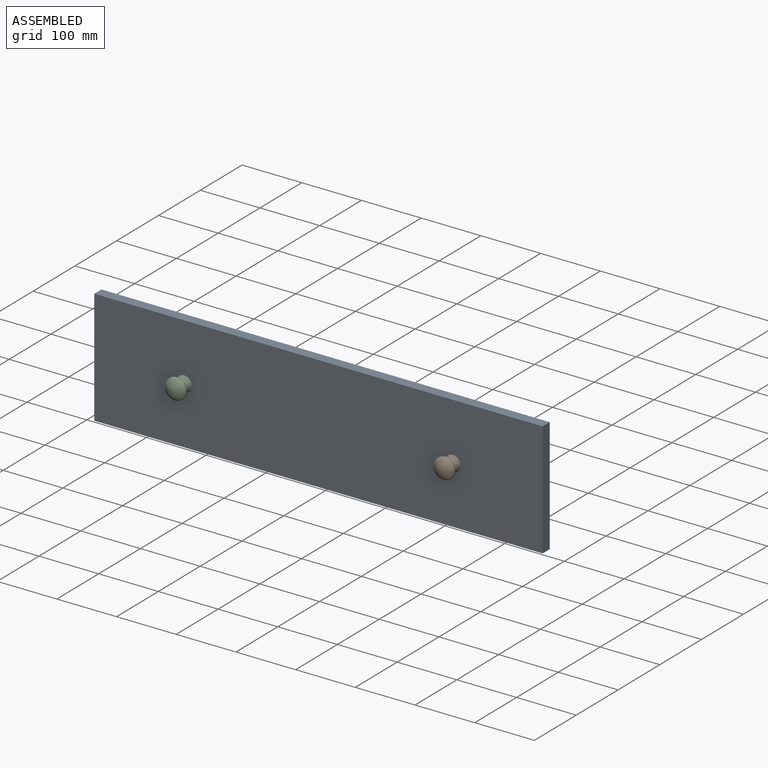
[diagram: assembled view]
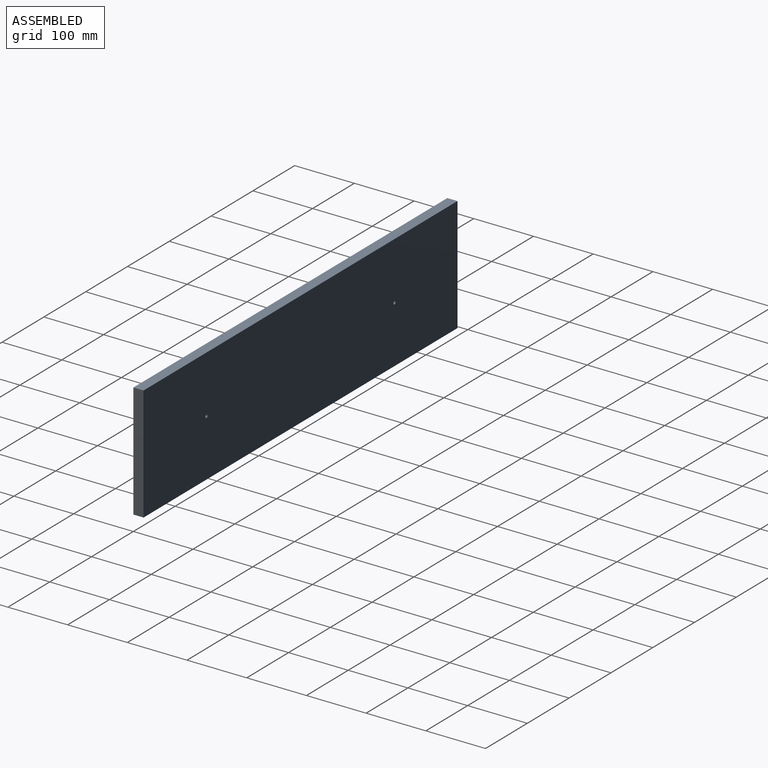
[diagram: assembled view, second angle]
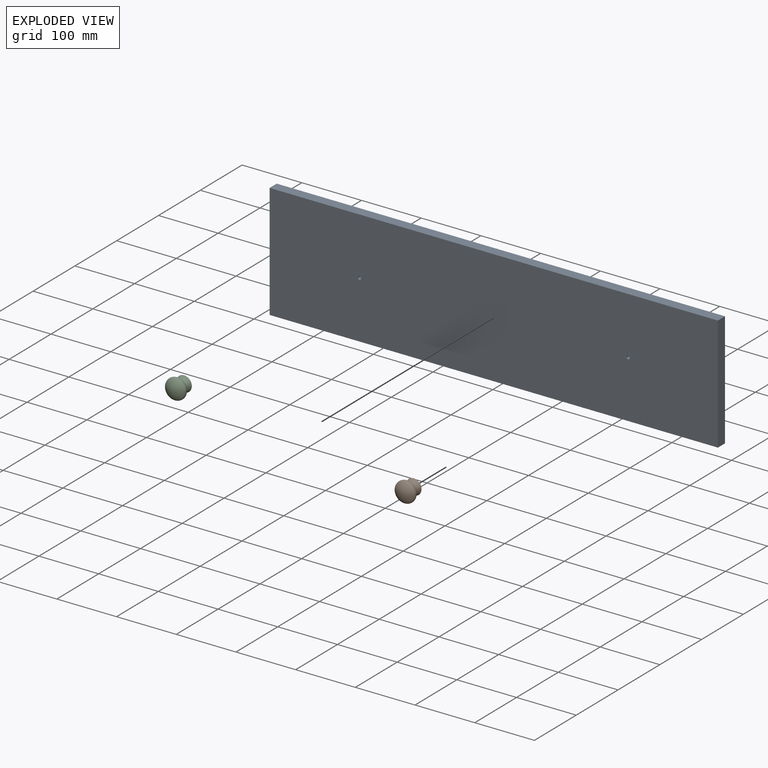
[diagram: exploded view]
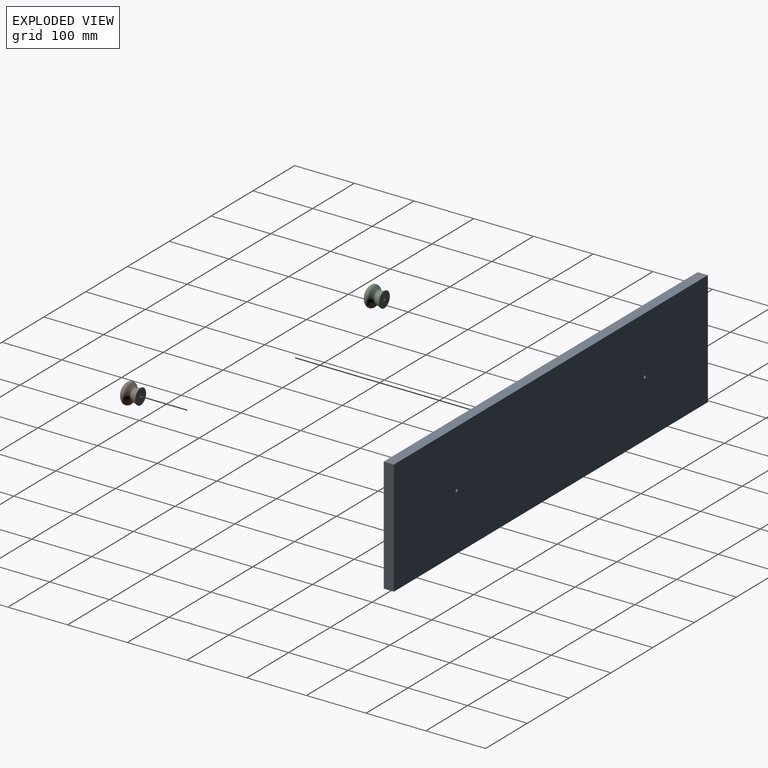
[diagram: exploded view, second angle]
ASSEMBLY  parts=3 mates=2
PART A: 8 faces, bbox 751x17x192.3 mm
  f0: plane 192.33x17mm, normal (-1,0,0), area 3269.7mm2, adj f1,f3,f4,f5
  f1: plane 751x17mm, normal (0,0,-1), area 12767mm2, adj f0,f2,f4,f5
  f2: plane 192.33x17mm, normal (1,0,0), area 3269.7mm2, adj f1,f3,f4,f5
  f3: plane 751x17mm, normal (0,0,1), area 12767mm2, adj f0,f2,f4,f5
  f4: plane 751x192.33mm, normal (0,1,0), area 144394.8mm2, adj f0,f1,f2,f3,f6,f7
  f5: plane 751x192.33mm, normal (0,-1,0), area 144394.8mm2, adj f0,f1,f2,f3,f6,f7
  f6: cylinder r=2.75mm len=17mm, axis (0,1,0), area 293.7mm2, adj f4,f5
  f7: cylinder r=2.75mm len=17mm, axis (0,1,0), area 293.7mm2, adj f4,f5
PART B: 8 faces, bbox 37.3x29.5x37.3 mm
  f0: sphere r=22.95mm, area 868.8mm2, adj f1
  f1: torus R=11.86mm, axis (0,1,0), area 935.5mm2, adj f0,f2
  f2: cone r=15.5mm half-angle=47.5deg, axis (0,-1,0), area 466.6mm2, adj f1,f3
  f3: torus R=14mm, axis (0,1,0), area 289.1mm2, adj f2,f4
  f4: cone r=10.4mm half-angle=18.5deg, axis (0,1,0), area 604.2mm2, adj f3,f5
  f5: plane 26x26mm, normal (0,1,0), area 522.4mm2, adj f4,f7
  f6: cone r=0mm half-angle=59deg, axis (0,1,0), area 10mm2, adj f7
  f7: cylinder r=1.65mm len=14.1mm, axis (0,1,0), area 146.2mm2, adj f5,f6
PART C: same geometry as B
PLACE A t=(-193.5,383,-607.83)mm
PLACE B t=(256.5,383,-607.83)mm
PLACE C t=(-193.5,383,-607.83)mm
MATE fastened A.f7 <-> B.f1  axis (0,-1,0) through (225,-17,0)mm
MATE fastened A.f6 <-> C.f1  axis (0,-1,0) through (-225,-17,0)mm
